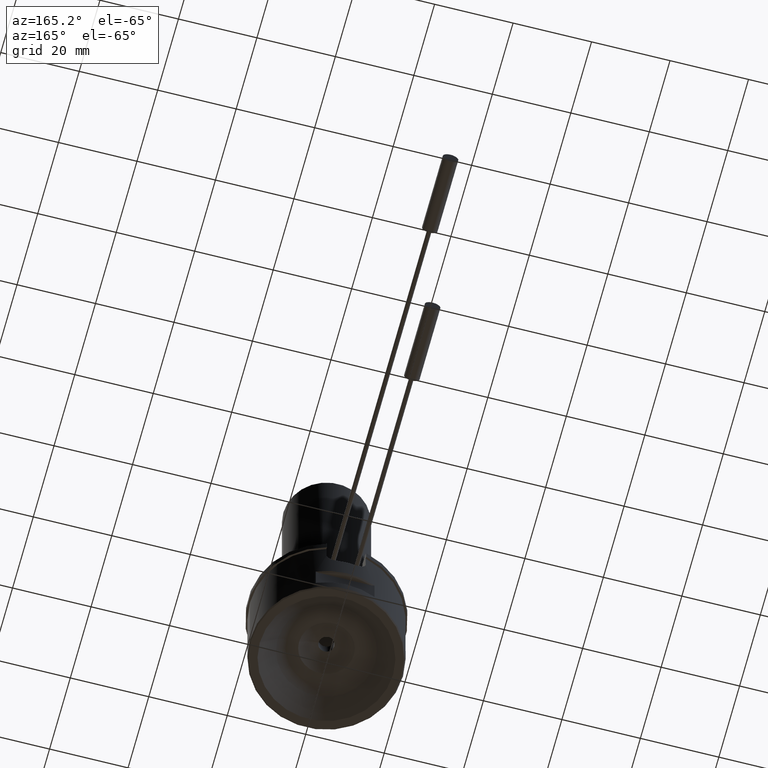
[diagram: clean part render]
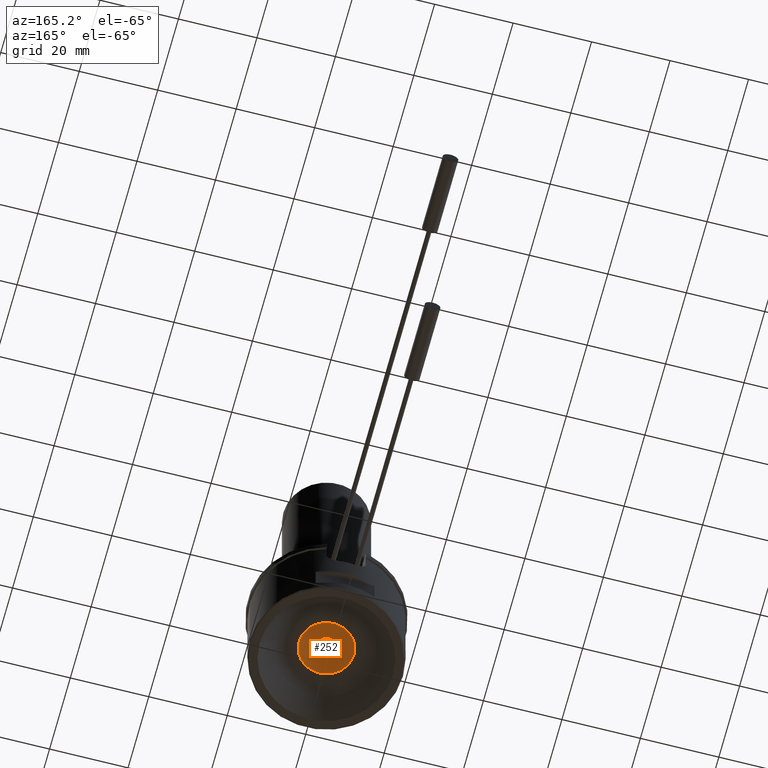
[diagram: same view with one face highlighted and labeled with its STEP entity id]
A machine part, auxiliary view. The second image highlights one B-rep face of the part: STEP entity #252.
In plain terms, the highlighted spherical surface has radius 11 mm.
Its self-contained STEP definition (entity closure, byte-faithful):
#34=SPHERICAL_SURFACE('',#1180,11.);
#252=ADVANCED_FACE('',(#373,#374),#34,.F.);
#373=FACE_BOUND('',#453,.T.);
#374=FACE_BOUND('',#454,.T.);
#453=EDGE_LOOP('',(#630));
#454=EDGE_LOOP('',(#631));
#630=ORIENTED_EDGE('',*,*,#986,.T.);
#631=ORIENTED_EDGE('',*,*,#985,.F.);
#862=VERTEX_POINT('',#2068);
#863=VERTEX_POINT('',#2071);
#985=EDGE_CURVE('',#862,#862,#1084,.T.);
#986=EDGE_CURVE('',#863,#863,#1085,.T.);
#1084=CIRCLE('',#1177,2.00000000000749);
#1085=CIRCLE('',#1179,6.98212002188452);
#1177=AXIS2_PLACEMENT_3D('',#2067,#1409,#1410);
#1179=AXIS2_PLACEMENT_3D('',#2070,#1413,#1414);
#1180=AXIS2_PLACEMENT_3D('',#2072,#1415,#1416);
#1409=DIRECTION('',(0.,0.,-1.));
#1410=DIRECTION('',(1.,0.,0.));
#1413=DIRECTION('',(0.,0.,-1.));
#1414=DIRECTION('',(1.,0.,0.));
#1415=DIRECTION('',(0.,-6.12323399573677E-17,1.));
#1416=DIRECTION('',(0.,-1.,0.));
#2067=CARTESIAN_POINT('',(0.,0.,8.31665382639197));
#2068=CARTESIAN_POINT('',(2.00000000000749,0.,8.31665382639197));
#2070=CARTESIAN_POINT('',(0.,0.,5.99999999999996));
#2071=CARTESIAN_POINT('',(6.98212002188452,0.,5.99999999999996));
#2072=CARTESIAN_POINT('',(0.,0.,-2.5));